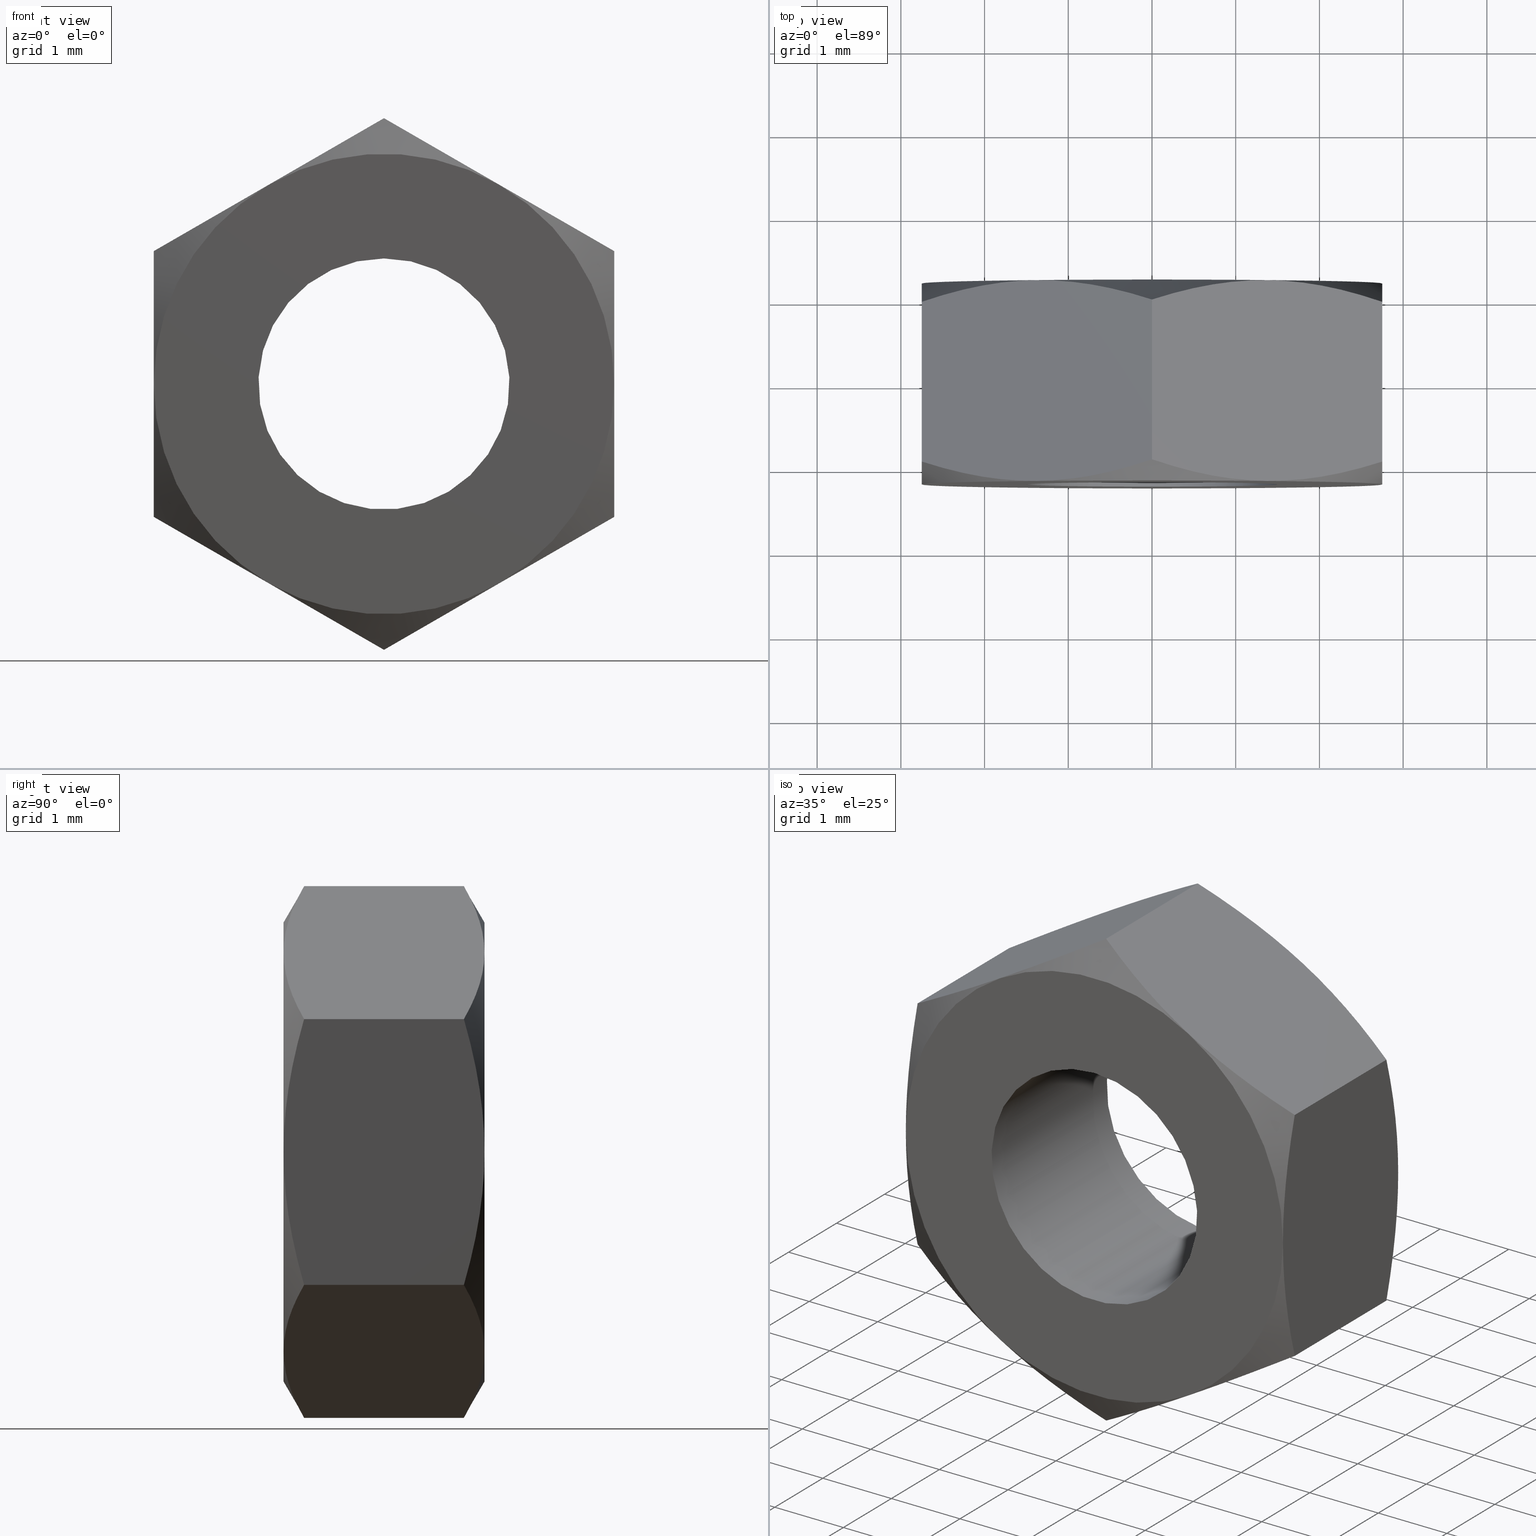
[diagram: canonical four-view strip — front | top / right | iso, engineering-drawing reading convention]
A machine part, canonical four-view strip (front | top / right | iso — engineering-drawing reading convention). The complete STEP part file that produces these views, byte-faithful:
ISO-10303-21;
HEADER;
/* Generated by software containing ST-Developer
 * from STEP Tools, Inc. (www.steptools.com) 
 */

FILE_DESCRIPTION(
/* description */ (''),
/* implementation_level */ '2;1');

FILE_NAME(
/* name */ 'M3-nut.step',
/* time_stamp */ '2024-09-27T18:28:31+02:00',
/* author */ (''),
/* organization */ (''),
/* preprocessor_version */ 'ST-DEVELOPER v20',
/* originating_system */ 'Autodesk Translation Framework v13.20.0.188',

/* authorisation */ '');

FILE_SCHEMA (('AUTOMOTIVE_DESIGN { 1 0 10303 214 3 1 1 }'));
ENDSEC;

DATA;
#10=MECHANICAL_DESIGN_GEOMETRIC_PRESENTATION_REPRESENTATION('',(#13),#588);
#11=SHAPE_REPRESENTATION_RELATIONSHIP('SRR','None',#595,#12);
#12=ADVANCED_BREP_SHAPE_REPRESENTATION('',(#14),#587);
#13=STYLED_ITEM('',(#605),#14);
#14=MANIFOLD_SOLID_BREP('Body1',#316);
#15=FACE_BOUND('',#65,.T.);
#16=FACE_BOUND('',#73,.T.);
#17=PLANE('',#337);
#18=PLANE('',#343);
#19=PLANE('',#344);
#20=PLANE('',#345);
#21=PLANE('',#346);
#22=PLANE('',#347);
#23=PLANE('',#348);
#24=PLANE('',#349);
#25=LINE('',#471,#32);
#26=LINE('',#486,#33);
#27=LINE('',#496,#34);
#28=LINE('',#513,#35);
#29=LINE('',#524,#36);
#30=LINE('',#534,#37);
#31=LINE('',#548,#38);
#32=VECTOR('',#379,1.5);
#33=VECTOR('',#396,1000.);
#34=VECTOR('',#397,1000.);
#35=VECTOR('',#400,1000.);
#36=VECTOR('',#403,1000.);
#37=VECTOR('',#406,1000.);
#38=VECTOR('',#409,1000.);
#39=CYLINDRICAL_SURFACE('',#334,1.5);
#40=FACE_OUTER_BOUND('',#61,.T.);
#41=FACE_OUTER_BOUND('',#62,.T.);
#42=FACE_OUTER_BOUND('',#63,.T.);
#43=FACE_OUTER_BOUND('',#64,.T.);
#44=FACE_OUTER_BOUND('',#66,.T.);
#45=FACE_OUTER_BOUND('',#67,.T.);
#46=FACE_OUTER_BOUND('',#68,.T.);
#47=FACE_OUTER_BOUND('',#69,.T.);
#48=FACE_OUTER_BOUND('',#70,.T.);
#49=FACE_OUTER_BOUND('',#71,.T.);
#50=FACE_OUTER_BOUND('',#72,.T.);
#51=FACE_OUTER_BOUND('',#74,.T.);
#52=FACE_OUTER_BOUND('',#75,.T.);
#53=FACE_OUTER_BOUND('',#76,.T.);
#54=FACE_OUTER_BOUND('',#77,.T.);
#55=FACE_OUTER_BOUND('',#78,.T.);
#56=FACE_OUTER_BOUND('',#79,.T.);
#57=FACE_OUTER_BOUND('',#80,.T.);
#58=FACE_OUTER_BOUND('',#81,.T.);
#59=FACE_OUTER_BOUND('',#82,.T.);
#60=FACE_OUTER_BOUND('',#83,.T.);
#61=EDGE_LOOP('',(#193,#194,#195));
#62=EDGE_LOOP('',(#196,#197,#198));
#63=EDGE_LOOP('',(#199,#200,#201,#202));
#64=EDGE_LOOP('',(#203,#204,#205,#206,#207,#208));
#65=EDGE_LOOP('',(#209));
#66=EDGE_LOOP('',(#210,#211,#212,#213,#214,#215));
#67=EDGE_LOOP('',(#216,#217,#218,#219,#220,#221));
#68=EDGE_LOOP('',(#222,#223,#224,#225,#226,#227));
#69=EDGE_LOOP('',(#228,#229,#230,#231,#232,#233));
#70=EDGE_LOOP('',(#234,#235,#236,#237,#238,#239));
#71=EDGE_LOOP('',(#240,#241,#242,#243,#244,#245));
#72=EDGE_LOOP('',(#246,#247,#248,#249,#250,#251));
#73=EDGE_LOOP('',(#252));
#74=EDGE_LOOP('',(#253,#254,#255));
#75=EDGE_LOOP('',(#256,#257,#258));
#76=EDGE_LOOP('',(#259,#260,#261));
#77=EDGE_LOOP('',(#262,#263,#264));
#78=EDGE_LOOP('',(#265,#266,#267));
#79=EDGE_LOOP('',(#268,#269,#270));
#80=EDGE_LOOP('',(#271,#272,#273));
#81=EDGE_LOOP('',(#274,#275,#276));
#82=EDGE_LOOP('',(#277,#278,#279));
#83=EDGE_LOOP('',(#280,#281,#282));
#84=(
BOUNDED_CURVE()
B_SPLINE_CURVE(2,(#450,#451,#452),.UNSPECIFIED.,.F.,.F.)
B_SPLINE_CURVE_WITH_KNOTS((3,3),(-1.21715266222543,-0.886731921730232),
 .UNSPECIFIED.)
CURVE()
GEOMETRIC_REPRESENTATION_ITEM()
RATIONAL_B_SPLINE_CURVE((1.92205114401652,2.07072231740623,2.07072231740623))
REPRESENTATION_ITEM('')
);
#85=(
BOUNDED_CURVE()
B_SPLINE_CURVE(2,(#453,#454,#455),.UNSPECIFIED.,.F.,.F.)
B_SPLINE_CURVE_WITH_KNOTS((3,3),(0.886731921730231,1.21715266222543),
 .UNSPECIFIED.)
CURVE()
GEOMETRIC_REPRESENTATION_ITEM()
RATIONAL_B_SPLINE_CURVE((2.07072231740623,2.07072231740623,1.92205114401652))
REPRESENTATION_ITEM('')
);
#86=(
BOUNDED_CURVE()
B_SPLINE_CURVE(2,(#461,#462,#463),.UNSPECIFIED.,.F.,.F.)
B_SPLINE_CURVE_WITH_KNOTS((3,3),(0.886731921730231,1.21715266222543),
 .UNSPECIFIED.)
CURVE()
GEOMETRIC_REPRESENTATION_ITEM()
RATIONAL_B_SPLINE_CURVE((2.07072231740623,2.07072231740623,1.92205114401652))
REPRESENTATION_ITEM('')
);
#87=(
BOUNDED_CURVE()
B_SPLINE_CURVE(2,(#464,#465,#466),.UNSPECIFIED.,.F.,.F.)
B_SPLINE_CURVE_WITH_KNOTS((3,3),(-1.21715266222543,-0.886731921730233),
 .UNSPECIFIED.)
CURVE()
GEOMETRIC_REPRESENTATION_ITEM()
RATIONAL_B_SPLINE_CURVE((1.92205114401652,2.07072231740623,2.07072231740623))
REPRESENTATION_ITEM('')
);
#88=(
BOUNDED_CURVE()
B_SPLINE_CURVE(2,(#488,#489,#490),.UNSPECIFIED.,.F.,.F.)
B_SPLINE_CURVE_WITH_KNOTS((3,3),(-1.21715266222543,-0.886731921730227),
 .UNSPECIFIED.)
CURVE()
GEOMETRIC_REPRESENTATION_ITEM()
RATIONAL_B_SPLINE_CURVE((1.92205114401651,2.07072231740622,2.07072231740622))
REPRESENTATION_ITEM('')
);
#89=(
BOUNDED_CURVE()
B_SPLINE_CURVE(2,(#492,#493,#494),.UNSPECIFIED.,.F.,.F.)
B_SPLINE_CURVE_WITH_KNOTS((3,3),(-0.886731921730227,-0.556311181235044),
 .UNSPECIFIED.)
CURVE()
GEOMETRIC_REPRESENTATION_ITEM()
RATIONAL_B_SPLINE_CURVE((2.07072231740621,2.07072231740621,1.92205114401652))
REPRESENTATION_ITEM('')
);
#90=(
BOUNDED_CURVE()
B_SPLINE_CURVE(2,(#497,#498,#499),.UNSPECIFIED.,.F.,.F.)
B_SPLINE_CURVE_WITH_KNOTS((3,3),(0.88673192173023,1.21715266222542),
 .UNSPECIFIED.)
CURVE()
GEOMETRIC_REPRESENTATION_ITEM()
RATIONAL_B_SPLINE_CURVE((2.07072231740621,2.07072231740621,1.92205114401652))
REPRESENTATION_ITEM('')
);
#91=(
BOUNDED_CURVE()
B_SPLINE_CURVE(2,(#500,#501,#502),.UNSPECIFIED.,.F.,.F.)
B_SPLINE_CURVE_WITH_KNOTS((3,3),(0.55631118123503,0.88673192173023),
 .UNSPECIFIED.)
CURVE()
GEOMETRIC_REPRESENTATION_ITEM()
RATIONAL_B_SPLINE_CURVE((1.92205114401651,2.07072231740622,2.07072231740621))
REPRESENTATION_ITEM('')
);
#92=(
BOUNDED_CURVE()
B_SPLINE_CURVE(2,(#505,#506,#507),.UNSPECIFIED.,.F.,.F.)
B_SPLINE_CURVE_WITH_KNOTS((3,3),(-1.21715266222544,-0.88673192173023),
 .UNSPECIFIED.)
CURVE()
GEOMETRIC_REPRESENTATION_ITEM()
RATIONAL_B_SPLINE_CURVE((1.9220511440165,2.07072231740622,2.07072231740622))
REPRESENTATION_ITEM('')
);
#93=(
BOUNDED_CURVE()
B_SPLINE_CURVE(2,(#509,#510,#511),.UNSPECIFIED.,.F.,.F.)
B_SPLINE_CURVE_WITH_KNOTS((3,3),(-0.88673192173023,-0.556311181235032),
 .UNSPECIFIED.)
CURVE()
GEOMETRIC_REPRESENTATION_ITEM()
RATIONAL_B_SPLINE_CURVE((2.07072231740622,2.07072231740622,1.92205114401651))
REPRESENTATION_ITEM('')
);
#94=(
BOUNDED_CURVE()
B_SPLINE_CURVE(2,(#514,#515,#516),.UNSPECIFIED.,.F.,.F.)
B_SPLINE_CURVE_WITH_KNOTS((3,3),(0.88673192173023,1.21715266222543),
 .UNSPECIFIED.)
CURVE()
GEOMETRIC_REPRESENTATION_ITEM()
RATIONAL_B_SPLINE_CURVE((2.07072231740622,2.07072231740622,1.92205114401651))
REPRESENTATION_ITEM('')
);
#95=(
BOUNDED_CURVE()
B_SPLINE_CURVE(2,(#517,#518,#519),.UNSPECIFIED.,.F.,.F.)
B_SPLINE_CURVE_WITH_KNOTS((3,3),(0.556311181235014,0.88673192173023),
 .UNSPECIFIED.)
CURVE()
GEOMETRIC_REPRESENTATION_ITEM()
RATIONAL_B_SPLINE_CURVE((1.9220511440165,2.07072231740622,2.07072231740622))
REPRESENTATION_ITEM('')
);
#96=(
BOUNDED_CURVE()
B_SPLINE_CURVE(2,(#521,#522,#523),.UNSPECIFIED.,.F.,.F.)
B_SPLINE_CURVE_WITH_KNOTS((3,3),(-1.21715266222543,-0.886731921730231),
 .UNSPECIFIED.)
CURVE()
GEOMETRIC_REPRESENTATION_ITEM()
RATIONAL_B_SPLINE_CURVE((1.92205114401652,2.07072231740623,2.07072231740623))
REPRESENTATION_ITEM('')
);
#97=(
BOUNDED_CURVE()
B_SPLINE_CURVE(2,(#525,#526,#527),.UNSPECIFIED.,.F.,.F.)
B_SPLINE_CURVE_WITH_KNOTS((3,3),(0.556311181235029,0.886731921730231),
 .UNSPECIFIED.)
CURVE()
GEOMETRIC_REPRESENTATION_ITEM()
RATIONAL_B_SPLINE_CURVE((1.92205114401652,2.07072231740623,2.07072231740623))
REPRESENTATION_ITEM('')
);
#98=(
BOUNDED_CURVE()
B_SPLINE_CURVE(2,(#530,#531,#532),.UNSPECIFIED.,.F.,.F.)
B_SPLINE_CURVE_WITH_KNOTS((3,3),(-0.886731921730232,-0.556311181235031),
 .UNSPECIFIED.)
CURVE()
GEOMETRIC_REPRESENTATION_ITEM()
RATIONAL_B_SPLINE_CURVE((2.07072231740623,2.07072231740623,1.92205114401652))
REPRESENTATION_ITEM('')
);
#99=(
BOUNDED_CURVE()
B_SPLINE_CURVE(2,(#535,#536,#537),.UNSPECIFIED.,.F.,.F.)
B_SPLINE_CURVE_WITH_KNOTS((3,3),(0.886731921730232,1.21715266222543),
 .UNSPECIFIED.)
CURVE()
GEOMETRIC_REPRESENTATION_ITEM()
RATIONAL_B_SPLINE_CURVE((2.07072231740623,2.07072231740623,1.92205114401652))
REPRESENTATION_ITEM('')
);
#100=(
BOUNDED_CURVE()
B_SPLINE_CURVE(2,(#540,#541,#542),.UNSPECIFIED.,.F.,.F.)
B_SPLINE_CURVE_WITH_KNOTS((3,3),(-1.21715266222543,-0.88673192173023),
 .UNSPECIFIED.)
CURVE()
GEOMETRIC_REPRESENTATION_ITEM()
RATIONAL_B_SPLINE_CURVE((1.92205114401652,2.07072231740623,2.07072231740622))
REPRESENTATION_ITEM('')
);
#101=(
BOUNDED_CURVE()
B_SPLINE_CURVE(2,(#544,#545,#546),.UNSPECIFIED.,.F.,.F.)
B_SPLINE_CURVE_WITH_KNOTS((3,3),(-0.88673192173023,-0.556311181235028),
 .UNSPECIFIED.)
CURVE()
GEOMETRIC_REPRESENTATION_ITEM()
RATIONAL_B_SPLINE_CURVE((2.07072231740623,2.07072231740622,1.92205114401651))
REPRESENTATION_ITEM('')
);
#102=(
BOUNDED_CURVE()
B_SPLINE_CURVE(2,(#549,#550,#551),.UNSPECIFIED.,.F.,.F.)
B_SPLINE_CURVE_WITH_KNOTS((3,3),(0.886731921730231,1.21715266222543),
 .UNSPECIFIED.)
CURVE()
GEOMETRIC_REPRESENTATION_ITEM()
RATIONAL_B_SPLINE_CURVE((2.07072231740622,2.07072231740622,1.92205114401651))
REPRESENTATION_ITEM('')
);
#103=(
BOUNDED_CURVE()
B_SPLINE_CURVE(2,(#552,#553,#554),.UNSPECIFIED.,.F.,.F.)
B_SPLINE_CURVE_WITH_KNOTS((3,3),(0.556311181235031,0.886731921730231),
 .UNSPECIFIED.)
CURVE()
GEOMETRIC_REPRESENTATION_ITEM()
RATIONAL_B_SPLINE_CURVE((1.92205114401652,2.07072231740622,2.07072231740622))
REPRESENTATION_ITEM('')
);
#104=(
BOUNDED_CURVE()
B_SPLINE_CURVE(2,(#557,#558,#559),.UNSPECIFIED.,.F.,.F.)
B_SPLINE_CURVE_WITH_KNOTS((3,3),(-1.21715266222542,-0.886731921730228),
 .UNSPECIFIED.)
CURVE()
GEOMETRIC_REPRESENTATION_ITEM()
RATIONAL_B_SPLINE_CURVE((1.92205114401651,2.07072231740622,2.07072231740622))
REPRESENTATION_ITEM('')
);
#105=(
BOUNDED_CURVE()
B_SPLINE_CURVE(2,(#560,#561,#562),.UNSPECIFIED.,.F.,.F.)
B_SPLINE_CURVE_WITH_KNOTS((3,3),(-0.886731921730228,-0.556311181235029),
 .UNSPECIFIED.)
CURVE()
GEOMETRIC_REPRESENTATION_ITEM()
RATIONAL_B_SPLINE_CURVE((2.07072231740622,2.07072231740622,1.92205114401651))
REPRESENTATION_ITEM('')
);
#106=(
BOUNDED_CURVE()
B_SPLINE_CURVE(2,(#563,#564,#565),.UNSPECIFIED.,.F.,.F.)
B_SPLINE_CURVE_WITH_KNOTS((3,3),(0.88673192173023,1.21715266222543),
 .UNSPECIFIED.)
CURVE()
GEOMETRIC_REPRESENTATION_ITEM()
RATIONAL_B_SPLINE_CURVE((2.07072231740622,2.07072231740622,1.92205114401651))
REPRESENTATION_ITEM('')
);
#107=(
BOUNDED_CURVE()
B_SPLINE_CURVE(2,(#566,#567,#568),.UNSPECIFIED.,.F.,.F.)
B_SPLINE_CURVE_WITH_KNOTS((3,3),(0.556311181235032,0.88673192173023),
 .UNSPECIFIED.)
CURVE()
GEOMETRIC_REPRESENTATION_ITEM()
RATIONAL_B_SPLINE_CURVE((1.92205114401651,2.07072231740622,2.07072231740622))
REPRESENTATION_ITEM('')
);
#108=CIRCLE('',#331,2.75);
#109=CIRCLE('',#333,2.75);
#110=CIRCLE('',#335,1.5);
#111=CIRCLE('',#336,1.5);
#112=CIRCLE('',#338,2.75);
#113=CIRCLE('',#339,2.75);
#114=CIRCLE('',#340,2.75);
#115=CIRCLE('',#341,2.75);
#116=CIRCLE('',#342,2.75);
#117=CIRCLE('',#350,2.75);
#118=CIRCLE('',#351,2.75);
#119=CIRCLE('',#352,2.75);
#120=CIRCLE('',#353,2.75);
#121=CIRCLE('',#354,2.75);
#122=VERTEX_POINT('',#446);
#123=VERTEX_POINT('',#447);
#124=VERTEX_POINT('',#449);
#125=VERTEX_POINT('',#457);
#126=VERTEX_POINT('',#458);
#127=VERTEX_POINT('',#460);
#128=VERTEX_POINT('',#468);
#129=VERTEX_POINT('',#470);
#130=VERTEX_POINT('',#474);
#131=VERTEX_POINT('',#476);
#132=VERTEX_POINT('',#478);
#133=VERTEX_POINT('',#480);
#134=VERTEX_POINT('',#484);
#135=VERTEX_POINT('',#485);
#136=VERTEX_POINT('',#487);
#137=VERTEX_POINT('',#491);
#138=VERTEX_POINT('',#495);
#139=VERTEX_POINT('',#504);
#140=VERTEX_POINT('',#508);
#141=VERTEX_POINT('',#512);
#142=VERTEX_POINT('',#529);
#143=VERTEX_POINT('',#533);
#144=VERTEX_POINT('',#539);
#145=VERTEX_POINT('',#543);
#146=VERTEX_POINT('',#547);
#147=VERTEX_POINT('',#556);
#148=EDGE_CURVE('',#122,#123,#108,.T.);
#149=EDGE_CURVE('',#124,#122,#84,.T.);
#150=EDGE_CURVE('',#123,#124,#85,.T.);
#151=EDGE_CURVE('',#125,#126,#109,.T.);
#152=EDGE_CURVE('',#125,#127,#86,.T.);
#153=EDGE_CURVE('',#127,#126,#87,.T.);
#154=EDGE_CURVE('',#128,#128,#110,.T.);
#155=EDGE_CURVE('',#128,#129,#25,.T.);
#156=EDGE_CURVE('',#129,#129,#111,.T.);
#157=EDGE_CURVE('',#126,#130,#112,.T.);
#158=EDGE_CURVE('',#130,#131,#113,.T.);
#159=EDGE_CURVE('',#131,#132,#114,.T.);
#160=EDGE_CURVE('',#132,#133,#115,.T.);
#161=EDGE_CURVE('',#133,#125,#116,.T.);
#162=EDGE_CURVE('',#134,#135,#26,.T.);
#163=EDGE_CURVE('',#135,#136,#88,.T.);
#164=EDGE_CURVE('',#136,#137,#89,.T.);
#165=EDGE_CURVE('',#138,#137,#27,.T.);
#166=EDGE_CURVE('',#132,#138,#90,.T.);
#167=EDGE_CURVE('',#134,#132,#91,.T.);
#168=EDGE_CURVE('',#137,#139,#92,.T.);
#169=EDGE_CURVE('',#139,#140,#93,.T.);
#170=EDGE_CURVE('',#141,#140,#28,.T.);
#171=EDGE_CURVE('',#133,#141,#94,.T.);
#172=EDGE_CURVE('',#138,#133,#95,.T.);
#173=EDGE_CURVE('',#140,#123,#96,.T.);
#174=EDGE_CURVE('',#127,#124,#29,.T.);
#175=EDGE_CURVE('',#141,#125,#97,.T.);
#176=EDGE_CURVE('',#122,#142,#98,.T.);
#177=EDGE_CURVE('',#143,#142,#30,.T.);
#178=EDGE_CURVE('',#126,#143,#99,.T.);
#179=EDGE_CURVE('',#142,#144,#100,.T.);
#180=EDGE_CURVE('',#144,#145,#101,.T.);
#181=EDGE_CURVE('',#146,#145,#31,.T.);
#182=EDGE_CURVE('',#130,#146,#102,.T.);
#183=EDGE_CURVE('',#143,#130,#103,.T.);
#184=EDGE_CURVE('',#145,#147,#104,.T.);
#185=EDGE_CURVE('',#147,#135,#105,.T.);
#186=EDGE_CURVE('',#131,#134,#106,.T.);
#187=EDGE_CURVE('',#146,#131,#107,.T.);
#188=EDGE_CURVE('',#123,#139,#117,.T.);
#189=EDGE_CURVE('',#139,#136,#118,.T.);
#190=EDGE_CURVE('',#136,#147,#119,.T.);
#191=EDGE_CURVE('',#147,#144,#120,.T.);
#192=EDGE_CURVE('',#122,#144,#121,.T.);
#193=ORIENTED_EDGE('',*,*,#148,.F.);
#194=ORIENTED_EDGE('',*,*,#149,.F.);
#195=ORIENTED_EDGE('',*,*,#150,.F.);
#196=ORIENTED_EDGE('',*,*,#151,.F.);
#197=ORIENTED_EDGE('',*,*,#152,.T.);
#198=ORIENTED_EDGE('',*,*,#153,.T.);
#199=ORIENTED_EDGE('',*,*,#154,.T.);
#200=ORIENTED_EDGE('',*,*,#155,.T.);
#201=ORIENTED_EDGE('',*,*,#156,.F.);
#202=ORIENTED_EDGE('',*,*,#155,.F.);
#203=ORIENTED_EDGE('',*,*,#151,.T.);
#204=ORIENTED_EDGE('',*,*,#157,.T.);
#205=ORIENTED_EDGE('',*,*,#158,.T.);
#206=ORIENTED_EDGE('',*,*,#159,.T.);
#207=ORIENTED_EDGE('',*,*,#160,.T.);
#208=ORIENTED_EDGE('',*,*,#161,.T.);
#209=ORIENTED_EDGE('',*,*,#154,.F.);
#210=ORIENTED_EDGE('',*,*,#162,.T.);
#211=ORIENTED_EDGE('',*,*,#163,.T.);
#212=ORIENTED_EDGE('',*,*,#164,.T.);
#213=ORIENTED_EDGE('',*,*,#165,.F.);
#214=ORIENTED_EDGE('',*,*,#166,.F.);
#215=ORIENTED_EDGE('',*,*,#167,.F.);
#216=ORIENTED_EDGE('',*,*,#165,.T.);
#217=ORIENTED_EDGE('',*,*,#168,.T.);
#218=ORIENTED_EDGE('',*,*,#169,.T.);
#219=ORIENTED_EDGE('',*,*,#170,.F.);
#220=ORIENTED_EDGE('',*,*,#171,.F.);
#221=ORIENTED_EDGE('',*,*,#172,.F.);
#222=ORIENTED_EDGE('',*,*,#170,.T.);
#223=ORIENTED_EDGE('',*,*,#173,.T.);
#224=ORIENTED_EDGE('',*,*,#150,.T.);
#225=ORIENTED_EDGE('',*,*,#174,.F.);
#226=ORIENTED_EDGE('',*,*,#152,.F.);
#227=ORIENTED_EDGE('',*,*,#175,.F.);
#228=ORIENTED_EDGE('',*,*,#174,.T.);
#229=ORIENTED_EDGE('',*,*,#149,.T.);
#230=ORIENTED_EDGE('',*,*,#176,.T.);
#231=ORIENTED_EDGE('',*,*,#177,.F.);
#232=ORIENTED_EDGE('',*,*,#178,.F.);
#233=ORIENTED_EDGE('',*,*,#153,.F.);
#234=ORIENTED_EDGE('',*,*,#177,.T.);
#235=ORIENTED_EDGE('',*,*,#179,.T.);
#236=ORIENTED_EDGE('',*,*,#180,.T.);
#237=ORIENTED_EDGE('',*,*,#181,.F.);
#238=ORIENTED_EDGE('',*,*,#182,.F.);
#239=ORIENTED_EDGE('',*,*,#183,.F.);
#240=ORIENTED_EDGE('',*,*,#181,.T.);
#241=ORIENTED_EDGE('',*,*,#184,.T.);
#242=ORIENTED_EDGE('',*,*,#185,.T.);
#243=ORIENTED_EDGE('',*,*,#162,.F.);
#244=ORIENTED_EDGE('',*,*,#186,.F.);
#245=ORIENTED_EDGE('',*,*,#187,.F.);
#246=ORIENTED_EDGE('',*,*,#148,.T.);
#247=ORIENTED_EDGE('',*,*,#188,.T.);
#248=ORIENTED_EDGE('',*,*,#189,.T.);
#249=ORIENTED_EDGE('',*,*,#190,.T.);
#250=ORIENTED_EDGE('',*,*,#191,.T.);
#251=ORIENTED_EDGE('',*,*,#192,.F.);
#252=ORIENTED_EDGE('',*,*,#156,.T.);
#253=ORIENTED_EDGE('',*,*,#167,.T.);
#254=ORIENTED_EDGE('',*,*,#159,.F.);
#255=ORIENTED_EDGE('',*,*,#186,.T.);
#256=ORIENTED_EDGE('',*,*,#182,.T.);
#257=ORIENTED_EDGE('',*,*,#187,.T.);
#258=ORIENTED_EDGE('',*,*,#158,.F.);
#259=ORIENTED_EDGE('',*,*,#178,.T.);
#260=ORIENTED_EDGE('',*,*,#183,.T.);
#261=ORIENTED_EDGE('',*,*,#157,.F.);
#262=ORIENTED_EDGE('',*,*,#171,.T.);
#263=ORIENTED_EDGE('',*,*,#175,.T.);
#264=ORIENTED_EDGE('',*,*,#161,.F.);
#265=ORIENTED_EDGE('',*,*,#166,.T.);
#266=ORIENTED_EDGE('',*,*,#172,.T.);
#267=ORIENTED_EDGE('',*,*,#160,.F.);
#268=ORIENTED_EDGE('',*,*,#192,.T.);
#269=ORIENTED_EDGE('',*,*,#179,.F.);
#270=ORIENTED_EDGE('',*,*,#176,.F.);
#271=ORIENTED_EDGE('',*,*,#191,.F.);
#272=ORIENTED_EDGE('',*,*,#184,.F.);
#273=ORIENTED_EDGE('',*,*,#180,.F.);
#274=ORIENTED_EDGE('',*,*,#185,.F.);
#275=ORIENTED_EDGE('',*,*,#190,.F.);
#276=ORIENTED_EDGE('',*,*,#163,.F.);
#277=ORIENTED_EDGE('',*,*,#189,.F.);
#278=ORIENTED_EDGE('',*,*,#168,.F.);
#279=ORIENTED_EDGE('',*,*,#164,.F.);
#280=ORIENTED_EDGE('',*,*,#188,.F.);
#281=ORIENTED_EDGE('',*,*,#173,.F.);
#282=ORIENTED_EDGE('',*,*,#169,.F.);
#283=CONICAL_SURFACE('',#330,2.75,1.0471975511966);
#284=CONICAL_SURFACE('',#332,2.75,1.0471975511966);
#285=CONICAL_SURFACE('',#355,2.75,1.0471975511966);
#286=CONICAL_SURFACE('',#356,2.75,1.0471975511966);
#287=CONICAL_SURFACE('',#357,2.75,1.0471975511966);
#288=CONICAL_SURFACE('',#358,2.75,1.0471975511966);
#289=CONICAL_SURFACE('',#359,2.75,1.0471975511966);
#290=CONICAL_SURFACE('',#360,2.75,1.0471975511966);
#291=CONICAL_SURFACE('',#361,2.75,1.0471975511966);
#292=CONICAL_SURFACE('',#362,2.75,1.0471975511966);
#293=CONICAL_SURFACE('',#363,2.75,1.0471975511966);
#294=CONICAL_SURFACE('',#364,2.75,1.0471975511966);
#295=ADVANCED_FACE('',(#40),#283,.T.);
#296=ADVANCED_FACE('',(#41),#284,.T.);
#297=ADVANCED_FACE('',(#42),#39,.F.);
#298=ADVANCED_FACE('',(#43,#15),#17,.T.);
#299=ADVANCED_FACE('',(#44),#18,.F.);
#300=ADVANCED_FACE('',(#45),#19,.F.);
#301=ADVANCED_FACE('',(#46),#20,.F.);
#302=ADVANCED_FACE('',(#47),#21,.F.);
#303=ADVANCED_FACE('',(#48),#22,.F.);
#304=ADVANCED_FACE('',(#49),#23,.F.);
#305=ADVANCED_FACE('',(#50,#16),#24,.F.);
#306=ADVANCED_FACE('',(#51),#285,.T.);
#307=ADVANCED_FACE('',(#52),#286,.T.);
#308=ADVANCED_FACE('',(#53),#287,.T.);
#309=ADVANCED_FACE('',(#54),#288,.T.);
#310=ADVANCED_FACE('',(#55),#289,.T.);
#311=ADVANCED_FACE('',(#56),#290,.T.);
#312=ADVANCED_FACE('',(#57),#291,.T.);
#313=ADVANCED_FACE('',(#58),#292,.T.);
#314=ADVANCED_FACE('',(#59),#293,.T.);
#315=ADVANCED_FACE('',(#60),#294,.T.);
#316=CLOSED_SHELL('',(#295,#296,#297,#298,#299,#300,#301,#302,#303,#304,
#305,#306,#307,#308,#309,#310,#311,#312,#313,#314,#315));
#317=DERIVED_UNIT_ELEMENT(#319,1.);
#318=DERIVED_UNIT_ELEMENT(#590,-3.);
#319=(
MASS_UNIT()
NAMED_UNIT(*)
SI_UNIT(.KILO.,.GRAM.)
);
#320=DERIVED_UNIT((#317,#318));
#321=MEASURE_REPRESENTATION_ITEM('density measure',
POSITIVE_RATIO_MEASURE(7850.),#320);
#322=PROPERTY_DEFINITION_REPRESENTATION(#327,#324);
#323=PROPERTY_DEFINITION_REPRESENTATION(#328,#325);
#324=REPRESENTATION('material name',(#326),#587);
#325=REPRESENTATION('density',(#321),#587);
#326=DESCRIPTIVE_REPRESENTATION_ITEM('Steel','Steel');
#327=PROPERTY_DEFINITION('material property','material name',#597);
#328=PROPERTY_DEFINITION('material property','density of part',#597);
#329=AXIS2_PLACEMENT_3D('',#444,#365,#366);
#330=AXIS2_PLACEMENT_3D('',#445,#367,#368);
#331=AXIS2_PLACEMENT_3D('',#448,#369,#370);
#332=AXIS2_PLACEMENT_3D('',#456,#371,#372);
#333=AXIS2_PLACEMENT_3D('',#459,#373,#374);
#334=AXIS2_PLACEMENT_3D('',#467,#375,#376);
#335=AXIS2_PLACEMENT_3D('',#469,#377,#378);
#336=AXIS2_PLACEMENT_3D('',#472,#380,#381);
#337=AXIS2_PLACEMENT_3D('',#473,#382,#383);
#338=AXIS2_PLACEMENT_3D('',#475,#384,#385);
#339=AXIS2_PLACEMENT_3D('',#477,#386,#387);
#340=AXIS2_PLACEMENT_3D('',#479,#388,#389);
#341=AXIS2_PLACEMENT_3D('',#481,#390,#391);
#342=AXIS2_PLACEMENT_3D('',#482,#392,#393);
#343=AXIS2_PLACEMENT_3D('',#483,#394,#395);
#344=AXIS2_PLACEMENT_3D('',#503,#398,#399);
#345=AXIS2_PLACEMENT_3D('',#520,#401,#402);
#346=AXIS2_PLACEMENT_3D('',#528,#404,#405);
#347=AXIS2_PLACEMENT_3D('',#538,#407,#408);
#348=AXIS2_PLACEMENT_3D('',#555,#410,#411);
#349=AXIS2_PLACEMENT_3D('',#569,#412,#413);
#350=AXIS2_PLACEMENT_3D('',#570,#414,#415);
#351=AXIS2_PLACEMENT_3D('',#571,#416,#417);
#352=AXIS2_PLACEMENT_3D('',#572,#418,#419);
#353=AXIS2_PLACEMENT_3D('',#573,#420,#421);
#354=AXIS2_PLACEMENT_3D('',#574,#422,#423);
#355=AXIS2_PLACEMENT_3D('',#575,#424,#425);
#356=AXIS2_PLACEMENT_3D('',#576,#426,#427);
#357=AXIS2_PLACEMENT_3D('',#577,#428,#429);
#358=AXIS2_PLACEMENT_3D('',#578,#430,#431);
#359=AXIS2_PLACEMENT_3D('',#579,#432,#433);
#360=AXIS2_PLACEMENT_3D('',#580,#434,#435);
#361=AXIS2_PLACEMENT_3D('',#581,#436,#437);
#362=AXIS2_PLACEMENT_3D('',#582,#438,#439);
#363=AXIS2_PLACEMENT_3D('',#583,#440,#441);
#364=AXIS2_PLACEMENT_3D('',#584,#442,#443);
#365=DIRECTION('axis',(0.,0.,1.));
#366=DIRECTION('refdir',(1.,0.,0.));
#367=DIRECTION('center_axis',(0.,1.,0.));
#368=DIRECTION('ref_axis',(0.,0.,1.));
#369=DIRECTION('center_axis',(0.,-1.,0.));
#370=DIRECTION('ref_axis',(0.,0.,1.));
#371=DIRECTION('center_axis',(0.,-1.,0.));
#372=DIRECTION('ref_axis',(0.,0.,1.));
#373=DIRECTION('center_axis',(0.,1.,0.));
#374=DIRECTION('ref_axis',(0.,0.,1.));
#375=DIRECTION('center_axis',(0.,-1.,0.));
#376=DIRECTION('ref_axis',(0.,0.,-1.));
#377=DIRECTION('center_axis',(0.,1.,0.));
#378=DIRECTION('ref_axis',(0.,0.,1.));
#379=DIRECTION('',(0.,-1.,0.));
#380=DIRECTION('center_axis',(0.,1.,0.));
#381=DIRECTION('ref_axis',(0.,0.,1.));
#382=DIRECTION('center_axis',(0.,1.,0.));
#383=DIRECTION('ref_axis',(0.,0.,1.));
#384=DIRECTION('center_axis',(0.,1.,0.));
#385=DIRECTION('ref_axis',(0.,0.,1.));
#386=DIRECTION('center_axis',(0.,1.,0.));
#387=DIRECTION('ref_axis',(0.,0.,1.));
#388=DIRECTION('center_axis',(0.,1.,0.));
#389=DIRECTION('ref_axis',(0.,0.,1.));
#390=DIRECTION('center_axis',(0.,1.,0.));
#391=DIRECTION('ref_axis',(0.,0.,1.));
#392=DIRECTION('center_axis',(0.,1.,0.));
#393=DIRECTION('ref_axis',(0.,0.,1.));
#394=DIRECTION('center_axis',(0.5,0.,0.866025403784439));
#395=DIRECTION('ref_axis',(0.866025403784439,0.,-0.5));
#396=DIRECTION('',(0.,-1.,0.));
#397=DIRECTION('',(0.,-1.,0.));
#398=DIRECTION('center_axis',(1.,0.,0.));
#399=DIRECTION('ref_axis',(0.,0.,-1.));
#400=DIRECTION('',(0.,-1.,0.));
#401=DIRECTION('center_axis',(0.5,0.,-0.866025403784439));
#402=DIRECTION('ref_axis',(-0.866025403784439,0.,-0.5));
#403=DIRECTION('',(0.,-1.,0.));
#404=DIRECTION('center_axis',(-0.5,0.,-0.866025403784439));
#405=DIRECTION('ref_axis',(-0.866025403784439,0.,0.5));
#406=DIRECTION('',(0.,-1.,0.));
#407=DIRECTION('center_axis',(-1.,0.,2.73148108861301E-16));
#408=DIRECTION('ref_axis',(2.73148108861301E-16,0.,1.));
#409=DIRECTION('',(0.,-1.,0.));
#410=DIRECTION('center_axis',(-0.5,0.,0.866025403784439));
#411=DIRECTION('ref_axis',(0.866025403784439,0.,0.5));
#412=DIRECTION('center_axis',(0.,1.,0.));
#413=DIRECTION('ref_axis',(0.,0.,1.));
#414=DIRECTION('center_axis',(0.,-1.,0.));
#415=DIRECTION('ref_axis',(0.,0.,1.));
#416=DIRECTION('center_axis',(0.,-1.,0.));
#417=DIRECTION('ref_axis',(0.,0.,1.));
#418=DIRECTION('center_axis',(0.,-1.,0.));
#419=DIRECTION('ref_axis',(1.77635683940025E-15,0.,1.));
#420=DIRECTION('center_axis',(0.,-1.,0.));
#421=DIRECTION('ref_axis',(-1.77635683940025E-15,0.,1.));
#422=DIRECTION('center_axis',(0.,1.,0.));
#423=DIRECTION('ref_axis',(0.,0.,1.));
#424=DIRECTION('center_axis',(0.,-1.,0.));
#425=DIRECTION('ref_axis',(-1.01064309961486E-15,0.,-1.));
#426=DIRECTION('center_axis',(0.,-1.,0.));
#427=DIRECTION('ref_axis',(0.,0.,1.));
#428=DIRECTION('center_axis',(0.,-1.,0.));
#429=DIRECTION('ref_axis',(0.,0.,1.));
#430=DIRECTION('center_axis',(0.,-1.,0.));
#431=DIRECTION('ref_axis',(0.,0.,1.));
#432=DIRECTION('center_axis',(0.,-1.,0.));
#433=DIRECTION('ref_axis',(0.,0.,1.));
#434=DIRECTION('center_axis',(0.,1.,0.));
#435=DIRECTION('ref_axis',(0.,0.,1.));
#436=DIRECTION('center_axis',(0.,1.,0.));
#437=DIRECTION('ref_axis',(0.,0.,1.));
#438=DIRECTION('center_axis',(0.,1.,0.));
#439=DIRECTION('ref_axis',(-1.20980294963545E-15,0.,-1.));
#440=DIRECTION('center_axis',(0.,1.,0.));
#441=DIRECTION('ref_axis',(0.,0.,1.));
#442=DIRECTION('center_axis',(0.,1.,0.));
#443=DIRECTION('ref_axis',(0.,0.,1.));
#444=CARTESIAN_POINT('',(0.,0.,0.));
#445=CARTESIAN_POINT('Origin',(0.,-1.2,0.));
#446=CARTESIAN_POINT('',(1.375,-1.2,2.38156986040721));
#447=CARTESIAN_POINT('',(-1.375,-1.2,2.38156986040721));
#448=CARTESIAN_POINT('Origin',(0.,-1.2,0.));
#449=CARTESIAN_POINT('',(-3.62328882571669E-16,-0.954379906938145,3.17542648054293));
#450=CARTESIAN_POINT('Ctrl Pts',(-1.8841981979204E-11,-0.954379906931863,
3.17542648055381));
#451=CARTESIAN_POINT('Ctrl Pts',(0.736860279178012,-1.2,2.75000000000436));
#452=CARTESIAN_POINT('Ctrl Pts',(1.375,-1.20000000000001,2.3815698604072));
#453=CARTESIAN_POINT('Ctrl Pts',(-1.375,-1.2,2.3815698604072));
#454=CARTESIAN_POINT('Ctrl Pts',(-0.736860279178014,-1.2,2.75000000000436));
#455=CARTESIAN_POINT('Ctrl Pts',(1.88404801565948E-11,-0.954379906931863,
3.17542648055381));
#456=CARTESIAN_POINT('Origin',(0.,1.2,0.));
#457=CARTESIAN_POINT('',(-1.375,1.2,2.3815698604072));
#458=CARTESIAN_POINT('',(1.375,1.2,2.3815698604072));
#459=CARTESIAN_POINT('Origin',(0.,1.2,0.));
#460=CARTESIAN_POINT('',(-3.62328882571669E-16,0.954379906938145,3.17542648054293));
#461=CARTESIAN_POINT('Ctrl Pts',(-1.375,1.2,2.3815698604072));
#462=CARTESIAN_POINT('Ctrl Pts',(-0.736860279178011,1.2,2.75000000000437));
#463=CARTESIAN_POINT('Ctrl Pts',(1.88439459010775E-11,0.954379906931862,
3.17542648055381));
#464=CARTESIAN_POINT('Ctrl Pts',(-1.8841981979204E-11,0.954379906931863,
3.17542648055381));
#465=CARTESIAN_POINT('Ctrl Pts',(0.736860279178011,1.2,2.75000000000437));
#466=CARTESIAN_POINT('Ctrl Pts',(1.37499999999999,1.20000000000001,2.3815698604072));
#467=CARTESIAN_POINT('Origin',(0.,1.2,0.));
#468=CARTESIAN_POINT('',(-1.83697019872103E-16,1.2,1.5));
#469=CARTESIAN_POINT('Origin',(0.,1.2,0.));
#470=CARTESIAN_POINT('',(-1.83697019872103E-16,-1.2,1.5));
#471=CARTESIAN_POINT('',(-1.83697019872103E-16,1.2,1.5));
#472=CARTESIAN_POINT('Origin',(0.,-1.2,0.));
#473=CARTESIAN_POINT('Origin',(-2.75,1.2,-1.58771324027148));
#474=CARTESIAN_POINT('',(2.75,1.2,-7.51157299368578E-16));
#475=CARTESIAN_POINT('Origin',(0.,1.2,0.));
#476=CARTESIAN_POINT('',(1.37500000000001,1.2,-2.38156986040722));
#477=CARTESIAN_POINT('Origin',(0.,1.2,0.));
#478=CARTESIAN_POINT('',(-1.375,1.2,-2.38156986040721));
#479=CARTESIAN_POINT('Origin',(0.,1.2,0.));
#480=CARTESIAN_POINT('',(-2.75,1.2,0.));
#481=CARTESIAN_POINT('Origin',(0.,1.2,0.));
#482=CARTESIAN_POINT('Origin',(0.,1.2,0.));
#483=CARTESIAN_POINT('Origin',(3.73483871489855E-15,1.2,-3.17542648054295));
#484=CARTESIAN_POINT('',(3.81099500422768E-15,0.954379906938133,-3.17542648054295));
#485=CARTESIAN_POINT('',(3.73483871489855E-15,-0.954379906938133,-3.17542648054295));
#486=CARTESIAN_POINT('',(3.73483871489855E-15,1.2,-3.17542648054295));
#487=CARTESIAN_POINT('',(-1.375,-1.2,-2.38156986040721));
#488=CARTESIAN_POINT('Ctrl Pts',(1.88521481630199E-11,-0.954379906931851,
-3.17542648055384));
#489=CARTESIAN_POINT('Ctrl Pts',(-0.736860279178015,-1.2,-2.75000000000438));
#490=CARTESIAN_POINT('Ctrl Pts',(-1.37500000000001,-1.2,-2.38156986040721));
#491=CARTESIAN_POINT('',(-2.75,-0.95437990693821,-1.58771324027159));
#492=CARTESIAN_POINT('Ctrl Pts',(-1.37500000000001,-1.2,-2.38156986040721));
#493=CARTESIAN_POINT('Ctrl Pts',(-2.01313972082197,-1.19999999999999,-2.01313972081006));
#494=CARTESIAN_POINT('Ctrl Pts',(-2.75000000001878,-0.954379906931875,-1.58771324026064));
#495=CARTESIAN_POINT('',(-2.75,0.95437990693821,-1.58771324027159));
#496=CARTESIAN_POINT('',(-2.75,1.2,-1.58771324027148));
#497=CARTESIAN_POINT('Ctrl Pts',(-1.37500000000001,1.2,-2.38156986040721));
#498=CARTESIAN_POINT('Ctrl Pts',(-2.01313972082197,1.19999999999999,-2.01313972081006));
#499=CARTESIAN_POINT('Ctrl Pts',(-2.75000000001879,0.954379906931873,-1.58771324026063));
#500=CARTESIAN_POINT('Ctrl Pts',(1.88464874470316E-11,0.954379906931853,
-3.17542648055383));
#501=CARTESIAN_POINT('Ctrl Pts',(-0.736860279178016,1.2,-2.75000000000438));
#502=CARTESIAN_POINT('Ctrl Pts',(-1.37500000000001,1.2,-2.38156986040721));
#503=CARTESIAN_POINT('Origin',(-2.75,1.2,-1.58771324027148));
#504=CARTESIAN_POINT('',(-2.75,-1.2,0.));
#505=CARTESIAN_POINT('Ctrl Pts',(-2.75,-0.954379906931833,-1.58771324029331));
#506=CARTESIAN_POINT('Ctrl Pts',(-2.75,-1.2,-0.736860279194368));
#507=CARTESIAN_POINT('Ctrl Pts',(-2.75,-1.2,-8.57844059760417E-16));
#508=CARTESIAN_POINT('',(-2.75,-0.954379906938142,1.58771324027146));
#509=CARTESIAN_POINT('Ctrl Pts',(-2.75,-1.2,-8.57844059760417E-16));
#510=CARTESIAN_POINT('Ctrl Pts',(-2.75,-1.2,0.736860279194327));
#511=CARTESIAN_POINT('Ctrl Pts',(-2.75,-0.954379906931862,1.58771324029322));
#512=CARTESIAN_POINT('',(-2.75,0.954379906938142,1.58771324027146));
#513=CARTESIAN_POINT('',(-2.75,1.2,1.58771324027146));
#514=CARTESIAN_POINT('Ctrl Pts',(-2.75,1.2,3.43137623904167E-15));
#515=CARTESIAN_POINT('Ctrl Pts',(-2.75,1.2,0.736860279194329));
#516=CARTESIAN_POINT('Ctrl Pts',(-2.75,0.954379906931863,1.58771324029322));
#517=CARTESIAN_POINT('Ctrl Pts',(-2.75,0.954379906931832,-1.58771324029332));
#518=CARTESIAN_POINT('Ctrl Pts',(-2.75,1.2,-0.736860279194368));
#519=CARTESIAN_POINT('Ctrl Pts',(-2.75,1.2,3.43137623904167E-15));
#520=CARTESIAN_POINT('Origin',(-2.75,1.2,1.58771324027146));
#521=CARTESIAN_POINT('Ctrl Pts',(-2.75000000001884,-0.954379906931859,1.58771324026058));
#522=CARTESIAN_POINT('Ctrl Pts',(-2.01313972082198,-1.2,2.01313972081003));
#523=CARTESIAN_POINT('Ctrl Pts',(-1.375,-1.2,2.3815698604072));
#524=CARTESIAN_POINT('',(-3.70746890314654E-16,1.2,3.17542648054293));
#525=CARTESIAN_POINT('Ctrl Pts',(-2.75000000001884,0.95437990693186,1.58771324026058));
#526=CARTESIAN_POINT('Ctrl Pts',(-2.01313972082198,1.2,2.01313972081003));
#527=CARTESIAN_POINT('Ctrl Pts',(-1.375,1.2,2.3815698604072));
#528=CARTESIAN_POINT('Origin',(-3.70746890314654E-16,1.2,3.17542648054293));
#529=CARTESIAN_POINT('',(2.75,-0.954379906938143,1.58771324027146));
#530=CARTESIAN_POINT('Ctrl Pts',(1.375,-1.20000000000001,2.3815698604072));
#531=CARTESIAN_POINT('Ctrl Pts',(2.01313972082198,-1.20000000000001,2.01313972081003));
#532=CARTESIAN_POINT('Ctrl Pts',(2.75000000001884,-0.954379906931863,1.58771324026058));
#533=CARTESIAN_POINT('',(2.75,0.954379906938143,1.58771324027146));
#534=CARTESIAN_POINT('',(2.75,1.2,1.58771324027146));
#535=CARTESIAN_POINT('Ctrl Pts',(1.375,1.20000000000001,2.3815698604072));
#536=CARTESIAN_POINT('Ctrl Pts',(2.01313972082199,1.2,2.01313972081003));
#537=CARTESIAN_POINT('Ctrl Pts',(2.75000000001884,0.954379906931861,1.58771324026058));
#538=CARTESIAN_POINT('Origin',(2.75,1.2,1.58771324027146));
#539=CARTESIAN_POINT('',(2.75,-1.2,-7.51157299368579E-16));
#540=CARTESIAN_POINT('Ctrl Pts',(2.75,-0.954379906931861,1.58771324029323));
#541=CARTESIAN_POINT('Ctrl Pts',(2.75,-1.2,0.73686027919433));
#542=CARTESIAN_POINT('Ctrl Pts',(2.75,-1.2,-2.14461014940104E-15));
#543=CARTESIAN_POINT('',(2.75,-0.954379906938137,-1.58771324027149));
#544=CARTESIAN_POINT('Ctrl Pts',(2.75,-1.2,-2.14461014940104E-15));
#545=CARTESIAN_POINT('Ctrl Pts',(2.75,-1.2,-0.736860279194339));
#546=CARTESIAN_POINT('Ctrl Pts',(2.75,-0.954379906931856,-1.58771324029324));
#547=CARTESIAN_POINT('',(2.75,0.954379906938137,-1.58771324027149));
#548=CARTESIAN_POINT('',(2.75,1.2,-1.58771324027149));
#549=CARTESIAN_POINT('Ctrl Pts',(2.75,1.2,-2.14461014940104E-15));
#550=CARTESIAN_POINT('Ctrl Pts',(2.75,1.2,-0.736860279194339));
#551=CARTESIAN_POINT('Ctrl Pts',(2.75,0.954379906931855,-1.58771324029324));
#552=CARTESIAN_POINT('Ctrl Pts',(2.75,0.954379906931861,1.58771324029322));
#553=CARTESIAN_POINT('Ctrl Pts',(2.75,1.2,0.736860279194329));
#554=CARTESIAN_POINT('Ctrl Pts',(2.75,1.2,-2.14461014940104E-15));
#555=CARTESIAN_POINT('Origin',(2.75,1.2,-1.58771324027149));
#556=CARTESIAN_POINT('',(1.375,-1.2,-2.38156986040721));
#557=CARTESIAN_POINT('Ctrl Pts',(2.75000000001884,-0.954379906931856,-1.58771324026061));
#558=CARTESIAN_POINT('Ctrl Pts',(2.01313972082198,-1.19999999999999,-2.01313972081005));
#559=CARTESIAN_POINT('Ctrl Pts',(1.375,-1.19999999999999,-2.38156986040722));
#560=CARTESIAN_POINT('Ctrl Pts',(1.375,-1.19999999999999,-2.38156986040722));
#561=CARTESIAN_POINT('Ctrl Pts',(0.736860279178016,-1.19999999999999,-2.75000000000438));
#562=CARTESIAN_POINT('Ctrl Pts',(-1.88401335821467E-11,-0.954379906931851,
-3.17542648055383));
#563=CARTESIAN_POINT('Ctrl Pts',(1.375,1.19999999999999,-2.38156986040722));
#564=CARTESIAN_POINT('Ctrl Pts',(0.736860279178017,1.19999999999999,-2.75000000000438));
#565=CARTESIAN_POINT('Ctrl Pts',(-1.88410577806754E-11,0.954379906931851,
-3.17542648055383));
#566=CARTESIAN_POINT('Ctrl Pts',(2.75000000001884,0.954379906931856,-1.58771324026061));
#567=CARTESIAN_POINT('Ctrl Pts',(2.01313972082199,1.19999999999999,-2.01313972081005));
#568=CARTESIAN_POINT('Ctrl Pts',(1.375,1.19999999999999,-2.38156986040722));
#569=CARTESIAN_POINT('Origin',(-2.75,-1.2,-1.58771324027148));
#570=CARTESIAN_POINT('Origin',(0.,-1.2,0.));
#571=CARTESIAN_POINT('Origin',(0.,-1.2,0.));
#572=CARTESIAN_POINT('Origin',(0.,-1.2,0.));
#573=CARTESIAN_POINT('Origin',(0.,-1.2,0.));
#574=CARTESIAN_POINT('Origin',(0.,-1.2,0.));
#575=CARTESIAN_POINT('Origin',(0.,1.2,0.));
#576=CARTESIAN_POINT('Origin',(0.,1.2,0.));
#577=CARTESIAN_POINT('Origin',(0.,1.2,0.));
#578=CARTESIAN_POINT('Origin',(0.,1.2,0.));
#579=CARTESIAN_POINT('Origin',(0.,1.2,0.));
#580=CARTESIAN_POINT('Origin',(0.,-1.2,0.));
#581=CARTESIAN_POINT('Origin',(0.,-1.2,0.));
#582=CARTESIAN_POINT('Origin',(0.,-1.2,0.));
#583=CARTESIAN_POINT('Origin',(0.,-1.2,0.));
#584=CARTESIAN_POINT('Origin',(0.,-1.2,0.));
#585=UNCERTAINTY_MEASURE_WITH_UNIT(LENGTH_MEASURE(0.01),#589,
'DISTANCE_ACCURACY_VALUE',
'Maximum model space distance between geometric entities at asserted c
onnectivities');
#586=UNCERTAINTY_MEASURE_WITH_UNIT(LENGTH_MEASURE(0.01),#589,
'DISTANCE_ACCURACY_VALUE',
'Maximum model space distance between geometric entities at asserted c
onnectivities');
#587=(
GEOMETRIC_REPRESENTATION_CONTEXT(3)
GLOBAL_UNCERTAINTY_ASSIGNED_CONTEXT((#585))
GLOBAL_UNIT_ASSIGNED_CONTEXT((#589,#591,#592))
REPRESENTATION_CONTEXT('','3D')
);
#588=(
GEOMETRIC_REPRESENTATION_CONTEXT(3)
GLOBAL_UNCERTAINTY_ASSIGNED_CONTEXT((#586))
GLOBAL_UNIT_ASSIGNED_CONTEXT((#589,#591,#592))
REPRESENTATION_CONTEXT('','3D')
);
#589=(
LENGTH_UNIT()
NAMED_UNIT(*)
SI_UNIT(.MILLI.,.METRE.)
);
#590=(
LENGTH_UNIT()
NAMED_UNIT(*)
SI_UNIT($,.METRE.)
);
#591=(
NAMED_UNIT(*)
PLANE_ANGLE_UNIT()
SI_UNIT($,.RADIAN.)
);
#592=(
NAMED_UNIT(*)
SI_UNIT($,.STERADIAN.)
SOLID_ANGLE_UNIT()
);
#593=SHAPE_DEFINITION_REPRESENTATION(#594,#595);
#594=PRODUCT_DEFINITION_SHAPE('',$,#597);
#595=SHAPE_REPRESENTATION('',(#329),#587);
#596=PRODUCT_DEFINITION_CONTEXT('part definition',#601,'design');
#597=PRODUCT_DEFINITION('M3 Nut','M3 Nut v1',#598,#596);
#598=PRODUCT_DEFINITION_FORMATION('',$,#603);
#599=PRODUCT_RELATED_PRODUCT_CATEGORY('M3 Nut v1','M3 Nut v1',(#603));
#600=APPLICATION_PROTOCOL_DEFINITION('international standard',
'automotive_design',2009,#601);
#601=APPLICATION_CONTEXT(
'Core Data for Automotive Mechanical Design Process');
#602=PRODUCT_CONTEXT('part definition',#601,'mechanical');
#603=PRODUCT('M3 Nut','M3 Nut v1',$,(#602));
#604=PRESENTATION_STYLE_ASSIGNMENT((#606));
#605=PRESENTATION_STYLE_ASSIGNMENT((#607));
#606=SURFACE_STYLE_USAGE(.BOTH.,#608);
#607=SURFACE_STYLE_USAGE(.BOTH.,#609);
#608=SURFACE_SIDE_STYLE('',(#610));
#609=SURFACE_SIDE_STYLE('',(#611));
#610=SURFACE_STYLE_FILL_AREA(#612);
#611=SURFACE_STYLE_FILL_AREA(#613);
#612=FILL_AREA_STYLE('Steel - Satin',(#614));
#613=FILL_AREA_STYLE('Tough 2000 (with Formlabs SLA 3D Printers)',(#615));
#614=FILL_AREA_STYLE_COLOUR('Steel - Satin',#616);
#615=FILL_AREA_STYLE_COLOUR(
'Tough 2000 (with Formlabs SLA 3D Printers)',#617);
#616=COLOUR_RGB('Steel - Satin',0.627450980392157,0.627450980392157,0.627450980392157);
#617=COLOUR_RGB('Tough 2000 (with Formlabs SLA 3D Printers)',0.247058823529412,
0.247058823529412,0.247058823529412);
ENDSEC;
END-ISO-10303-21;
